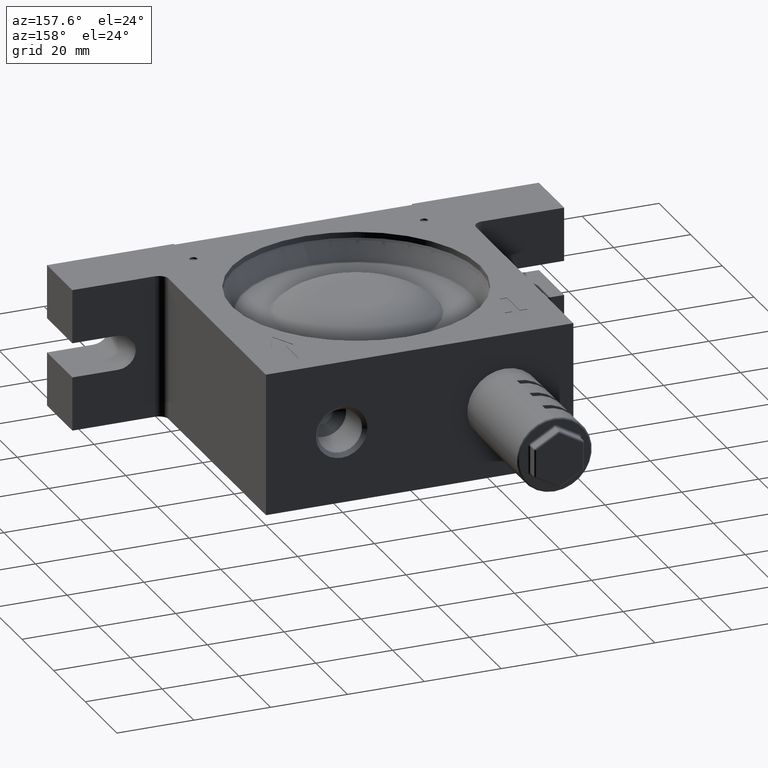
[diagram: clean part render]
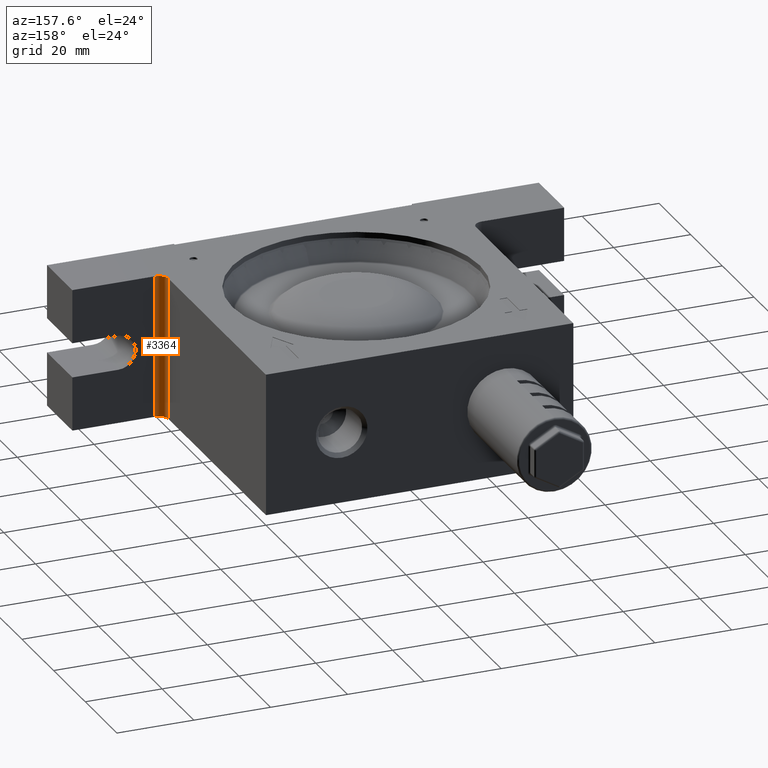
[diagram: same view with one face highlighted and labeled with its STEP entity id]
A machine part, auxiliary view. The second image highlights one B-rep face of the part: STEP entity #3364.
In plain terms, the highlighted cylindrical surface (edge-blend (fillet) strip) has radius 2.5 mm, axis along (0, 0, -1).
Its self-contained STEP definition (entity closure, byte-faithful):
#16 = DIRECTION ( 'NONE',  ( -0.0000000000000000000, -0.0000000000000000000, -1.000000000000000000 ) ) ;
#276 = CARTESIAN_POINT ( 'NONE',  ( 42.50000000000000000, -21.50000000000000000, 18.50000000000000000 ) ) ;
#693 = LINE ( 'NONE', #3511, #6625 ) ;
#719 = CARTESIAN_POINT ( 'NONE',  ( 42.50000000000000000, -21.50000000000000000, -18.50000000000000000 ) ) ;
#1041 = VECTOR ( 'NONE', #16, 1000.000000000000000 ) ;
#1055 = CARTESIAN_POINT ( 'NONE',  ( 42.50000000000000000, -21.50000000000000000, -18.50000000000000000 ) ) ;
#1250 = AXIS2_PLACEMENT_3D ( 'NONE', #1055, #2794, #6822 ) ;
#1587 = EDGE_LOOP ( 'NONE', ( #3039, #1908, #5616, #2387 ) ) ;
#1830 = CARTESIAN_POINT ( 'NONE',  ( 42.50000000000000000, -24.00000000000000000, 18.50000000000000000 ) ) ;
#1908 = ORIENTED_EDGE ( 'NONE', *, *, #6314, .F. ) ;
#1939 = DIRECTION ( 'NONE',  ( 0.0000000000000000000, 0.0000000000000000000, -1.000000000000000000 ) ) ;
#2367 = EDGE_CURVE ( 'NONE', #2856, #6399, #693, .T. ) ;
#2387 = ORIENTED_EDGE ( 'NONE', *, *, #2367, .F. ) ;
#2478 = DIRECTION ( 'NONE',  ( -0.0000000000000000000, -0.0000000000000000000, 1.000000000000000000 ) ) ;
#2530 = CARTESIAN_POINT ( 'NONE',  ( 40.00000000000000000, -21.50000000000000000, 18.50000000000000000 ) ) ;
#2753 = FACE_OUTER_BOUND ( 'NONE', #1587, .T. ) ;
#2794 = DIRECTION ( 'NONE',  ( 0.0000000000000000000, 0.0000000000000000000, -1.000000000000000000 ) ) ;
#2856 = VERTEX_POINT ( 'NONE', #5258 ) ;
#3039 = ORIENTED_EDGE ( 'NONE', *, *, #6792, .F. ) ;
#3054 = DIRECTION ( 'NONE',  ( -1.000000000000000000, 0.0000000000000000000, 0.0000000000000000000 ) ) ;
#3364 = ADVANCED_FACE ( 'NONE', ( #2753 ), #3737, .F. ) ;
#3486 = LINE ( 'NONE', #3504, #1041 ) ;
#3504 = CARTESIAN_POINT ( 'NONE',  ( 40.00000000000000000, -21.50000000000000000, -18.50000000000000000 ) ) ;
#3511 = CARTESIAN_POINT ( 'NONE',  ( 42.50000000000000000, -24.00000000000000000, 18.50000000000000000 ) ) ;
#3710 = AXIS2_PLACEMENT_3D ( 'NONE', #276, #1939, #5954 ) ;
#3737 = CYLINDRICAL_SURFACE ( 'NONE', #1250, 2.500000000000002200 ) ;
#3762 = CARTESIAN_POINT ( 'NONE',  ( 40.00000000000000000, -21.50000000000000000, -18.50000000000000000 ) ) ;
#3825 = AXIS2_PLACEMENT_3D ( 'NONE', #719, #2478, #3054 ) ;
#4911 = CIRCLE ( 'NONE', #3825, 2.500000000000002200 ) ;
#5258 = CARTESIAN_POINT ( 'NONE',  ( 42.50000000000000000, -24.00000000000000000, -18.50000000000000000 ) ) ;
#5616 = ORIENTED_EDGE ( 'NONE', *, *, #5830, .F. ) ;
#5830 = EDGE_CURVE ( 'NONE', #6399, #6500, #6818, .T. ) ;
#5855 = DIRECTION ( 'NONE',  ( 0.0000000000000000000, 0.0000000000000000000, 1.000000000000000000 ) ) ;
#5937 = VERTEX_POINT ( 'NONE', #3762 ) ;
#5954 = DIRECTION ( 'NONE',  ( -1.000000000000000000, 0.0000000000000000000, 0.0000000000000000000 ) ) ;
#6314 = EDGE_CURVE ( 'NONE', #6500, #5937, #3486, .T. ) ;
#6399 = VERTEX_POINT ( 'NONE', #1830 ) ;
#6500 = VERTEX_POINT ( 'NONE', #2530 ) ;
#6625 = VECTOR ( 'NONE', #5855, 1000.000000000000000 ) ;
#6792 = EDGE_CURVE ( 'NONE', #5937, #2856, #4911, .T. ) ;
#6818 = CIRCLE ( 'NONE', #3710, 2.500000000000002200 ) ;
#6822 = DIRECTION ( 'NONE',  ( -1.000000000000000000, 0.0000000000000000000, 0.0000000000000000000 ) ) ;